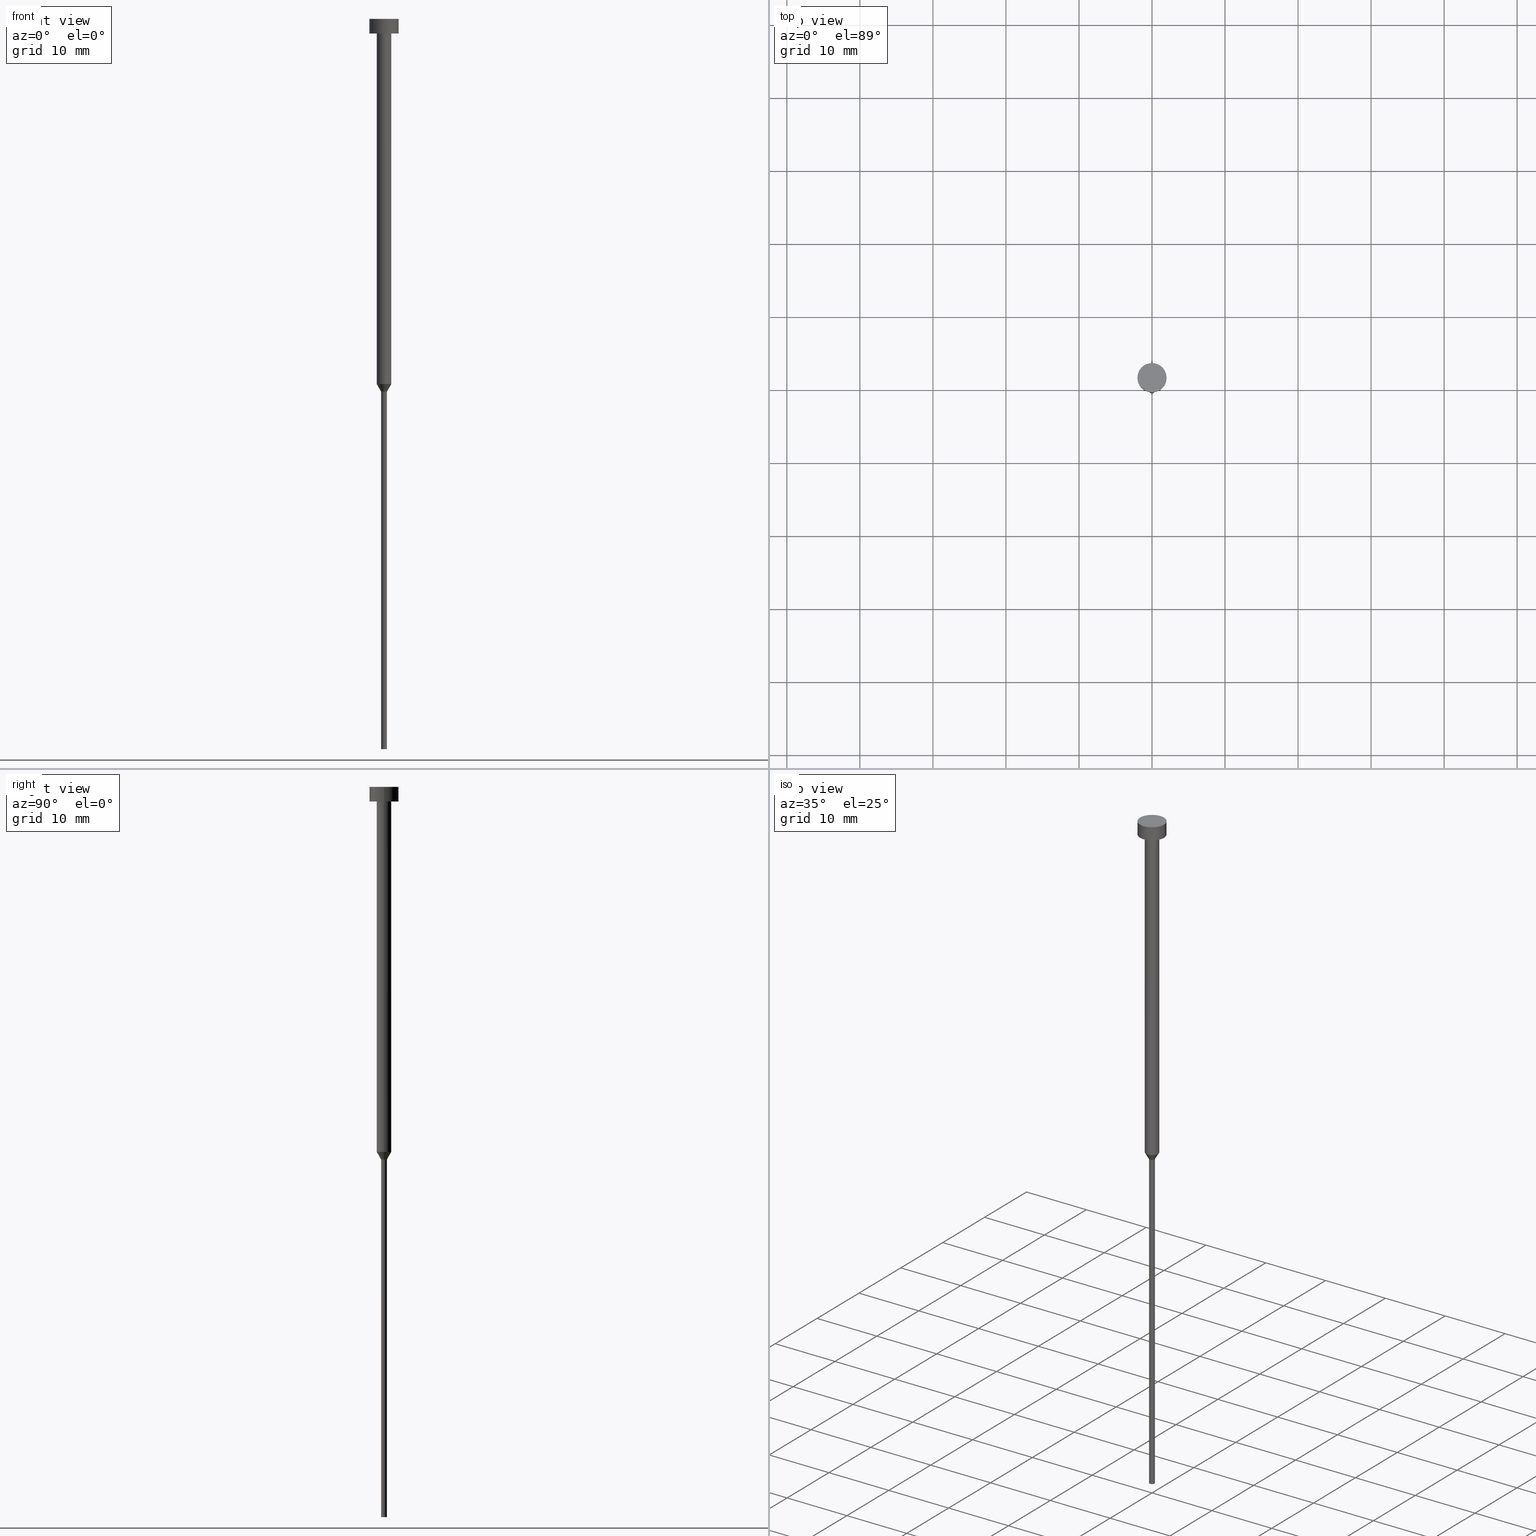
[diagram: canonical four-view strip — front | top / right | iso, engineering-drawing reading convention]
A machine part, canonical four-view strip (front | top / right | iso — engineering-drawing reading convention). The complete STEP part file that produces these views, byte-faithful:
ISO-10303-21;
HEADER;
FILE_DESCRIPTION (( 'STEP AP203' ),
    '1' );
FILE_NAME ('f9f1.STEP',
    '2023-02-13T12:41:39',
    ( '' ),
    ( '' ),
    'SwSTEP 2.0',
    'SolidWorks 2019',
    '' );
FILE_SCHEMA (( 'CONFIG_CONTROL_DESIGN' ));
ENDSEC;

DATA;
#1 = CIRCLE ( 'NONE', #12, 2.000000000000000000 ) ;
#2 = VECTOR ( 'NONE', #323, 1000.000000000000000 ) ;
#3 = AXIS2_PLACEMENT_3D ( 'NONE', #332, #129, #99 ) ;
#4 = DIRECTION ( 'NONE',  ( -0.000000000000000000, -0.000000000000000000, 1.000000000000000000 ) ) ;
#5 = PERSON_AND_ORGANIZATION ( #109, #113 ) ;
#6 = CIRCLE ( 'NONE', #275, 2.000000000000000000 ) ;
#7 = CC_DESIGN_SECURITY_CLASSIFICATION ( #45, ( #75 ) ) ;
#8 = CC_DESIGN_PERSON_AND_ORGANIZATION_ASSIGNMENT ( #57, #220, ( #75 ) ) ;
#9 = ORIENTED_EDGE ( 'NONE', *, *, #96, .T. ) ;
#10 = PERSON_AND_ORGANIZATION ( #109, #113 ) ;
#11 = VERTEX_POINT ( 'NONE', #207 ) ;
#12 = AXIS2_PLACEMENT_3D ( 'NONE', #232, #65, #60 ) ;
#13 = ADVANCED_FACE ( 'NONE', ( #16 ), #322, .T. ) ;
#14 = CYLINDRICAL_SURFACE ( 'NONE', #3, 2.000000000000000000 ) ;
#15 = CYLINDRICAL_SURFACE ( 'NONE', #327, 0.3999999999999999667 ) ;
#16 = FACE_OUTER_BOUND ( 'NONE', #67, .T. ) ;
#17 = PERSON_AND_ORGANIZATION ( #109, #113 ) ;
#18 = CLOSED_SHELL ( 'NONE', ( #143, #13, #231, #87, #127, #22, #193, #130, #73, #150, #211 ) ) ;
#19 = DIRECTION ( 'NONE',  ( -0.000000000000000000, -0.000000000000000000, 1.000000000000000000 ) ) ;
#20 = CC_DESIGN_APPROVAL ( #48, ( #45 ) ) ;
#21 = DIRECTION ( 'NONE',  ( 1.000000000000000000, 0.000000000000000000, 0.000000000000000000 ) ) ;
#22 = ADVANCED_FACE ( 'NONE', ( #38 ), #15, .T. ) ;
#23 = CARTESIAN_POINT ( 'NONE',  ( 0.000000000000000000, 0.000000000000000000, 0.000000000000000000 ) ) ;
#24 = ORIENTED_EDGE ( 'NONE', *, *, #184, .T. ) ;
#25 = AXIS2_PLACEMENT_3D ( 'NONE', #23, #126, #249 ) ;
#26 = VERTEX_POINT ( 'NONE', #198 ) ;
#27 = CC_DESIGN_PERSON_AND_ORGANIZATION_ASSIGNMENT ( #5, #83, ( #45 ) ) ;
#28 = FACE_OUTER_BOUND ( 'NONE', #169, .T. ) ;
#29 = EDGE_CURVE ( 'NONE', #26, #283, #115, .T. ) ;
#30 = ORIENTED_EDGE ( 'NONE', *, *, #29, .F. ) ;
#31 = ORIENTED_EDGE ( 'NONE', *, *, #96, .F. ) ;
#32 = AXIS2_PLACEMENT_3D ( 'NONE', #131, #55, #106 ) ;
#33 = DATE_AND_TIME ( #108, #122 ) ;
#34 = DIRECTION ( 'NONE',  ( 1.000000000000000000, 0.000000000000000000, 0.000000000000000000 ) ) ;
#35 = APPROVAL_DATE_TIME ( #290, #105 ) ;
#36 = DIRECTION ( 'NONE',  ( -0.000000000000000000, -0.000000000000000000, 1.000000000000000000 ) ) ;
#37 = DIRECTION ( 'NONE',  ( 1.000000000000000000, 0.000000000000000000, 0.000000000000000000 ) ) ;
#38 = FACE_OUTER_BOUND ( 'NONE', #84, .T. ) ;
#39 = CIRCLE ( 'NONE', #50, 0.4000000000000000222 ) ;
#40 = PERSON_AND_ORGANIZATION_ROLE ( 'design_owner' ) ;
#41 = LINE ( 'NONE', #118, #265 ) ;
#42 = VERTEX_POINT ( 'NONE', #110 ) ;
#43 = DIRECTION ( 'NONE',  ( 1.000000000000000000, 0.000000000000000000, 0.000000000000000000 ) ) ;
#44 = DIRECTION ( 'NONE',  ( -0.000000000000000000, -0.000000000000000000, 1.000000000000000000 ) ) ;
#45 = SECURITY_CLASSIFICATION ( '', '', #103 ) ;
#46 = CONICAL_SURFACE ( 'NONE', #197, 1.000000000000003109, 0.5235987755983013692 ) ;
#47 = DIRECTION ( 'NONE',  ( -0.000000000000000000, -0.000000000000000000, 1.000000000000000000 ) ) ;
#48 = APPROVAL ( #315, 'NEUR�EN�' ) ;
#49 = CARTESIAN_POINT ( 'NONE',  ( -1.000000000000003109, 1.224646799147356905E-16, -50.00000000000000000 ) ) ;
#50 = AXIS2_PLACEMENT_3D ( 'NONE', #61, #4, #80 ) ;
#51 = DIRECTION ( 'NONE',  ( -0.000000000000000000, -0.000000000000000000, 1.000000000000000000 ) ) ;
#52 = AXIS2_PLACEMENT_3D ( 'NONE', #151, #19, #98 ) ;
#53 = ORIENTED_EDGE ( 'NONE', *, *, #69, .F. ) ;
#54 = DATE_TIME_ROLE ( 'classification_date' ) ;
#55 = DIRECTION ( 'NONE',  ( -0.000000000000000000, -0.000000000000000000, 1.000000000000000000 ) ) ;
#56 = VERTEX_POINT ( 'NONE', #267 ) ;
#57 = PERSON_AND_ORGANIZATION ( #109, #113 ) ;
#58 = APPROVAL_ROLE ( '' ) ;
#59 = AXIS2_PLACEMENT_3D ( 'NONE', #248, #308, #353 ) ;
#60 = DIRECTION ( 'NONE',  ( 1.000000000000000000, 0.000000000000000000, 0.000000000000000000 ) ) ;
#61 = CARTESIAN_POINT ( 'NONE',  ( 0.000000000000000000, 0.000000000000000000, -100.0000000000000000 ) ) ;
#62 = VERTEX_POINT ( 'NONE', #328 ) ;
#63 = CARTESIAN_POINT ( 'NONE',  ( -0.3999999999999999667, 4.898587196589412459E-17, 0.000000000000000000 ) ) ;
#64 = CARTESIAN_POINT ( 'NONE',  ( 2.000000000000000000, 0.000000000000000000, -2.449293598294705921E-16 ) ) ;
#65 = DIRECTION ( 'NONE',  ( -0.000000000000000000, -0.000000000000000000, 1.000000000000000000 ) ) ;
#66 = CARTESIAN_POINT ( 'NONE',  ( 0.000000000000000000, 0.000000000000000000, -2.000000000000000444 ) ) ;
#67 = EDGE_LOOP ( 'NONE', ( #24, #242, #30, #138 ) ) ;
#68 = CARTESIAN_POINT ( 'NONE',  ( 0.000000000000000000, 0.000000000000000000, -2.000000000000000444 ) ) ;
#69 = EDGE_CURVE ( 'NONE', #62, #142, #41, .T. ) ;
#70 = ORIENTED_EDGE ( 'NONE', *, *, #339, .F. ) ;
#71 = AXIS2_PLACEMENT_3D ( 'NONE', #284, #257, #317 ) ;
#72 = CARTESIAN_POINT ( 'NONE',  ( 0.000000000000000000, 0.000000000000000000, -50.00000000000000000 ) ) ;
#73 = ADVANCED_FACE ( 'NONE', ( #175, #300 ), #306, .T. ) ;
#74 = CARTESIAN_POINT ( 'NONE',  ( -2.000000000000000000, 2.449293598294706414E-16, -2.000000000000000444 ) ) ;
#75 = PRODUCT_DEFINITION_FORMATION_WITH_SPECIFIED_SOURCE ( 'LIBOVOLN�', '', #270, .NOT_KNOWN. ) ;
#76 = EDGE_LOOP ( 'NONE', ( #88, #182, #302, #53 ) ) ;
#77 = CARTESIAN_POINT ( 'NONE',  ( 0.000000000000000000, 0.000000000000000000, 0.000000000000000000 ) ) ;
#78 = EDGE_CURVE ( 'NONE', #62, #144, #6, .T. ) ;
#79 = CARTESIAN_POINT ( 'NONE',  ( 0.000000000000000000, 0.000000000000000000, -1.224646799147352961E-16 ) ) ;
#80 = DIRECTION ( 'NONE',  ( 1.000000000000000000, 0.000000000000000000, 0.000000000000000000 ) ) ;
#81 = VECTOR ( 'NONE', #189, 1000.000000000000000 ) ;
#82 = ORIENTED_EDGE ( 'NONE', *, *, #184, .F. ) ;
#83 = PERSON_AND_ORGANIZATION_ROLE ( 'classification_officer' ) ;
#84 = EDGE_LOOP ( 'NONE', ( #250, #128, #135, #190 ) ) ;
#85 = DATE_TIME_ROLE ( 'creation_date' ) ;
#86 = FACE_OUTER_BOUND ( 'NONE', #263, .T. ) ;
#87 = ADVANCED_FACE ( 'NONE', ( #148 ), #215, .T. ) ;
#88 = ORIENTED_EDGE ( 'NONE', *, *, #78, .T. ) ;
#89 = DIRECTION ( 'NONE',  ( -0.000000000000000000, -0.000000000000000000, 1.000000000000000000 ) ) ;
#90 = APPROVAL_DATE_TIME ( #352, #166 ) ;
#91 = ORIENTED_EDGE ( 'NONE', *, *, #188, .T. ) ;
#92 = VECTOR ( 'NONE', #159, 1000.000000000000000 ) ;
#93 = PLANE ( 'NONE',  #318 ) ;
#94 = ORIENTED_EDGE ( 'NONE', *, *, #245, .T. ) ;
#95 =( GEOMETRIC_REPRESENTATION_CONTEXT ( 3 ) GLOBAL_UNCERTAINTY_ASSIGNED_CONTEXT ( ( #228 ) ) GLOBAL_UNIT_ASSIGNED_CONTEXT ( ( #348, #351, #298 ) ) REPRESENTATION_CONTEXT ( 'NONE', 'WORKASPACE' ) );
#96 = EDGE_CURVE ( 'NONE', #42, #310, #274, .T. ) ;
#97 = CARTESIAN_POINT ( 'NONE',  ( 0.000000000000000000, 0.000000000000000000, -2.449293598294705921E-16 ) ) ;
#98 = DIRECTION ( 'NONE',  ( 1.000000000000000000, 0.000000000000000000, 0.000000000000000000 ) ) ;
#99 = DIRECTION ( 'NONE',  ( 1.000000000000000000, 0.000000000000000000, 0.000000000000000000 ) ) ;
#100 = AXIS2_PLACEMENT_3D ( 'NONE', #289, #296, #349 ) ;
#101 = CC_DESIGN_PERSON_AND_ORGANIZATION_ASSIGNMENT ( #112, #227, ( #277 ) ) ;
#102 = CARTESIAN_POINT ( 'NONE',  ( 0.000000000000000000, 0.000000000000000000, -2.449293598294705921E-16 ) ) ;
#103 = SECURITY_CLASSIFICATION_LEVEL ( 'unclassified' ) ;
#104 = COORDINATED_UNIVERSAL_TIME_OFFSET ( 1, 0, .AHEAD. ) ;
#105 = APPROVAL ( #321, 'NEUR�EN�' ) ;
#106 = DIRECTION ( 'NONE',  ( 1.000000000000000000, 0.000000000000000000, 0.000000000000000000 ) ) ;
#107 = ORIENTED_EDGE ( 'NONE', *, *, #251, .T. ) ;
#108 = CALENDAR_DATE ( 2023, 13, 2 ) ;
#109 = PERSON ( 'NEUR�EN�', 'NEUR�EN�', 'NEUR�EN�', ('NEUR�EN�'), ('NEUR�EN�'), ('NEUR�EN�') ) ;
#110 = CARTESIAN_POINT ( 'NONE',  ( -0.3999999999999999667, 4.898587196589412459E-17, -51.03923048454132783 ) ) ;
#111 = DIRECTION ( 'NONE',  ( -0.000000000000000000, -0.000000000000000000, 1.000000000000000000 ) ) ;
#112 = PERSON_AND_ORGANIZATION ( #109, #113 ) ;
#113 = ORGANIZATION ( 'NEUR�EN�', 'NEUR�EN�', '' ) ;
#114 = CC_DESIGN_DATE_AND_TIME_ASSIGNMENT ( #33, #54, ( #45 ) ) ;
#115 = CIRCLE ( 'NONE', #333, 1.000000000000003553 ) ;
#116 = LINE ( 'NONE', #133, #305 ) ;
#117 = APPROVAL_STATUS ( 'not_yet_approved' ) ;
#118 = CARTESIAN_POINT ( 'NONE',  ( 2.000000000000000000, 0.000000000000000000, 0.000000000000000000 ) ) ;
#119 = EDGE_LOOP ( 'NONE', ( #325, #107 ) ) ;
#120 = EDGE_CURVE ( 'NONE', #42, #56, #153, .T. ) ;
#121 = CARTESIAN_POINT ( 'NONE',  ( 0.000000000000000000, 0.000000000000000000, 0.000000000000000000 ) ) ;
#122 = LOCAL_TIME ( 13, 41, 39.00000000000000000, #312 ) ;
#123 = AXIS2_PLACEMENT_3D ( 'NONE', #77, #276, #280 ) ;
#124 = DIRECTION ( 'NONE',  ( 1.000000000000000000, 0.000000000000000000, 0.000000000000000000 ) ) ;
#125 = VERTEX_POINT ( 'NONE', #337 ) ;
#126 = DIRECTION ( 'NONE',  ( -0.000000000000000000, -0.000000000000000000, 1.000000000000000000 ) ) ;
#127 = ADVANCED_FACE ( 'NONE', ( #246 ), #93, .T. ) ;
#128 = ORIENTED_EDGE ( 'NONE', *, *, #320, .T. ) ;
#129 = DIRECTION ( 'NONE',  ( -0.000000000000000000, -0.000000000000000000, 1.000000000000000000 ) ) ;
#130 = ADVANCED_FACE ( 'NONE', ( #86 ), #234, .T. ) ;
#131 = CARTESIAN_POINT ( 'NONE',  ( 0.000000000000000000, 0.000000000000000000, -100.0000000000000000 ) ) ;
#132 = DIRECTION ( 'NONE',  ( 1.000000000000000000, 0.000000000000000000, 0.000000000000000000 ) ) ;
#133 = CARTESIAN_POINT ( 'NONE',  ( 1.000000000000003331, 0.000000000000000000, 0.000000000000000000 ) ) ;
#134 = ORIENTED_EDGE ( 'NONE', *, *, #203, .F. ) ;
#135 = ORIENTED_EDGE ( 'NONE', *, *, #203, .T. ) ;
#136 = DIRECTION ( 'NONE',  ( -0.000000000000000000, -0.000000000000000000, 1.000000000000000000 ) ) ;
#137 = AXIS2_PLACEMENT_3D ( 'NONE', #324, #177, #37 ) ;
#138 = ORIENTED_EDGE ( 'NONE', *, *, #223, .F. ) ;
#139 = CARTESIAN_POINT ( 'NONE',  ( 1.000000000000003109, 0.000000000000000000, -50.00000000000000000 ) ) ;
#140 = APPROVAL_ROLE ( '' ) ;
#141 = LOCAL_TIME ( 13, 41, 39.00000000000000000, #157 ) ;
#142 = VERTEX_POINT ( 'NONE', #64 ) ;
#143 = ADVANCED_FACE ( 'NONE', ( #295 ), #14, .T. ) ;
#144 = VERTEX_POINT ( 'NONE', #74 ) ;
#145 = LINE ( 'NONE', #63, #2 ) ;
#146 = APPLICATION_PROTOCOL_DEFINITION ( 'international standard', 'config_control_design', 1994, #221 ) ;
#147 = LOCAL_TIME ( 13, 41, 39.00000000000000000, #104 ) ;
#148 = FACE_OUTER_BOUND ( 'NONE', #152, .T. ) ;
#149 = FACE_OUTER_BOUND ( 'NONE', #285, .T. ) ;
#150 = ADVANCED_FACE ( 'NONE', ( #335 ), #217, .T. ) ;
#151 = CARTESIAN_POINT ( 'NONE',  ( 0.000000000000000000, 0.000000000000000000, -51.03923048454132783 ) ) ;
#152 = EDGE_LOOP ( 'NONE', ( #330, #94, #174, #134 ) ) ;
#153 = CIRCLE ( 'NONE', #52, 0.3999999999999999667 ) ;
#154 = DIRECTION ( 'NONE',  ( 1.000000000000000000, 0.000000000000000000, 0.000000000000000000 ) ) ;
#155 = ORIENTED_EDGE ( 'NONE', *, *, #320, .F. ) ;
#156 = SHAPE_DEFINITION_REPRESENTATION ( #214, #235 ) ;
#157 = COORDINATED_UNIVERSAL_TIME_OFFSET ( 1, 0, .AHEAD. ) ;
#158 = CONICAL_SURFACE ( 'NONE', #350, 1.000000000000003109, 0.5235987755983013692 ) ;
#159 = DIRECTION ( 'NONE',  ( -0.000000000000000000, -0.000000000000000000, 1.000000000000000000 ) ) ;
#160 = EDGE_CURVE ( 'NONE', #56, #42, #299, .T. ) ;
#161 = CARTESIAN_POINT ( 'NONE',  ( -2.000000000000000000, 2.449293598294706414E-16, 0.000000000000000000 ) ) ;
#162 = EDGE_LOOP ( 'NONE', ( #165, #240 ) ) ;
#163 = DATE_AND_TIME ( #341, #141 ) ;
#164 = AXIS2_PLACEMENT_3D ( 'NONE', #293, #136, #243 ) ;
#165 = ORIENTED_EDGE ( 'NONE', *, *, #78, .F. ) ;
#166 = APPROVAL ( #117, 'NEUR�EN�' ) ;
#167 = DIRECTION ( 'NONE',  ( 0.5000000000000021094, 0.000000000000000000, 0.8660254037844373753 ) ) ;
#168 = LINE ( 'NONE', #161, #81 ) ;
#169 = EDGE_LOOP ( 'NONE', ( #31, #261, #253, #209 ) ) ;
#170 = ORIENTED_EDGE ( 'NONE', *, *, #160, .T. ) ;
#171 = CALENDAR_DATE ( 2023, 13, 2 ) ;
#172 = CARTESIAN_POINT ( 'NONE',  ( -2.000000000000000000, 2.449293598294706414E-16, -2.449293598294705921E-16 ) ) ;
#173 = DIRECTION ( 'NONE',  ( -0.000000000000000000, -0.000000000000000000, 1.000000000000000000 ) ) ;
#174 = ORIENTED_EDGE ( 'NONE', *, *, #160, .F. ) ;
#175 = FACE_BOUND ( 'NONE', #119, .T. ) ;
#176 = CARTESIAN_POINT ( 'NONE',  ( 0.000000000000000000, 0.000000000000000000, -50.00000000000000000 ) ) ;
#177 = DIRECTION ( 'NONE',  ( 0.000000000000000000, 0.000000000000000000, 1.000000000000000000 ) ) ;
#178 = DIRECTION ( 'NONE',  ( -0.000000000000000000, -0.000000000000000000, 1.000000000000000000 ) ) ;
#179 = CARTESIAN_POINT ( 'NONE',  ( -1.000000000000003553, 1.224646799147357398E-16, -2.000000000000000444 ) ) ;
#180 = CC_DESIGN_PERSON_AND_ORGANIZATION_ASSIGNMENT ( #326, #40, ( #270 ) ) ;
#181 = CARTESIAN_POINT ( 'NONE',  ( 0.3999999999999999667, 0.000000000000000000, 0.000000000000000000 ) ) ;
#182 = ORIENTED_EDGE ( 'NONE', *, *, #334, .T. ) ;
#183 = DIRECTION ( 'NONE',  ( -0.000000000000000000, -0.000000000000000000, 1.000000000000000000 ) ) ;
#184 = EDGE_CURVE ( 'NONE', #125, #310, #241, .T. ) ;
#185 = CIRCLE ( 'NONE', #32, 0.4000000000000000222 ) ;
#186 = PLANE ( 'NONE',  #255 ) ;
#187 = DIRECTION ( 'NONE',  ( 1.000000000000000000, 0.000000000000000000, 0.000000000000000000 ) ) ;
#188 = EDGE_CURVE ( 'NONE', #271, #142, #230, .T. ) ;
#189 = DIRECTION ( 'NONE',  ( -0.000000000000000000, -0.000000000000000000, 1.000000000000000000 ) ) ;
#190 = ORIENTED_EDGE ( 'NONE', *, *, #120, .F. ) ;
#191 = DESIGN_CONTEXT ( 'detailed design', #336, 'design' ) ;
#192 = ORIENTED_EDGE ( 'NONE', *, *, #301, .F. ) ;
#193 = ADVANCED_FACE ( 'NONE', ( #28 ), #46, .T. ) ;
#194 = FACE_OUTER_BOUND ( 'NONE', #262, .T. ) ;
#195 = CC_DESIGN_APPROVAL ( #105, ( #75 ) ) ;
#196 = LINE ( 'NONE', #199, #92 ) ;
#197 = AXIS2_PLACEMENT_3D ( 'NONE', #72, #254, #21 ) ;
#198 = CARTESIAN_POINT ( 'NONE',  ( 1.000000000000003553, 0.000000000000000000, -2.000000000000000444 ) ) ;
#199 = CARTESIAN_POINT ( 'NONE',  ( -1.000000000000003331, 1.224646799147357151E-16, 0.000000000000000000 ) ) ;
#200 = PERSON_AND_ORGANIZATION ( #109, #113 ) ;
#201 = DIRECTION ( 'NONE',  ( 1.000000000000000000, 0.000000000000000000, 0.000000000000000000 ) ) ;
#202 = ORIENTED_EDGE ( 'NONE', *, *, #260, .T. ) ;
#203 = EDGE_CURVE ( 'NONE', #222, #56, #247, .T. ) ;
#204 = DIRECTION ( 'NONE',  ( 1.000000000000000000, 0.000000000000000000, 0.000000000000000000 ) ) ;
#205 = ORIENTED_EDGE ( 'NONE', *, *, #223, .T. ) ;
#206 = CALENDAR_DATE ( 2023, 13, 2 ) ;
#207 = CARTESIAN_POINT ( 'NONE',  ( -0.4000000000000000777, 4.898587196589413692E-17, -100.0000000000000000 ) ) ;
#208 = AXIS2_PLACEMENT_3D ( 'NONE', #213, #307, #278 ) ;
#209 = ORIENTED_EDGE ( 'NONE', *, *, #311, .F. ) ;
#210 = CARTESIAN_POINT ( 'NONE',  ( 0.000000000000000000, 0.000000000000000000, -100.0000000000000000 ) ) ;
#211 = ADVANCED_FACE ( 'NONE', ( #149 ), #186, .T. ) ;
#212 = AXIS2_PLACEMENT_3D ( 'NONE', #252, #183, #124 ) ;
#213 = CARTESIAN_POINT ( 'NONE',  ( 0.000000000000000000, -2.000000000000000000, -2.000000000000000444 ) ) ;
#214 = PRODUCT_DEFINITION_SHAPE ( 'NONE', 'NONE',  #277 ) ;
#215 = CYLINDRICAL_SURFACE ( 'NONE', #25, 0.3999999999999999667 ) ;
#216 = VECTOR ( 'NONE', #47, 1000.000000000000000 ) ;
#217 = CYLINDRICAL_SURFACE ( 'NONE', #123, 2.000000000000000000 ) ;
#218 = APPROVAL_DATE_TIME ( #163, #48 ) ;
#219 = EDGE_LOOP ( 'NONE', ( #346, #202, #343, #237 ) ) ;
#220 = PERSON_AND_ORGANIZATION_ROLE ( 'creator' ) ;
#221 = APPLICATION_CONTEXT ( 'configuration controlled 3d designs of mechanical parts and assemblies' ) ;
#222 = VERTEX_POINT ( 'NONE', #329 ) ;
#223 = EDGE_CURVE ( 'NONE', #125, #26, #116, .T. ) ;
#224 = PERSON_AND_ORGANIZATION ( #109, #113 ) ;
#225 = CIRCLE ( 'NONE', #71, 1.000000000000003109 ) ;
#226 = CARTESIAN_POINT ( 'NONE',  ( -1.000000000000003109, 1.224646799147356905E-16, -50.00000000000000000 ) ) ;
#227 = PERSON_AND_ORGANIZATION_ROLE ( 'creator' ) ;
#228 = UNCERTAINTY_MEASURE_WITH_UNIT (LENGTH_MEASURE( 1.000000000000000082E-05 ), #348, 'distance_accuracy_value', 'NONE');
#229 = DIRECTION ( 'NONE',  ( 0.000000000000000000, 0.000000000000000000, -1.000000000000000000 ) ) ;
#230 = CIRCLE ( 'NONE', #338, 2.000000000000000000 ) ;
#231 = ADVANCED_FACE ( 'NONE', ( #194 ), #158, .T. ) ;
#232 = CARTESIAN_POINT ( 'NONE',  ( 0.000000000000000000, 0.000000000000000000, -2.000000000000000444 ) ) ;
#233 = APPLICATION_PROTOCOL_DEFINITION ( 'international standard', 'config_control_design', 1994, #336 ) ;
#234 = CYLINDRICAL_SURFACE ( 'NONE', #288, 1.000000000000003331 ) ;
#235 = ADVANCED_BREP_SHAPE_REPRESENTATION ( 'f9f1', ( #238, #137 ), #95 ) ;
#236 = DIRECTION ( 'NONE',  ( -0.000000000000000000, -0.000000000000000000, 1.000000000000000000 ) ) ;
#237 = ORIENTED_EDGE ( 'NONE', *, *, #188, .F. ) ;
#238 = MANIFOLD_SOLID_BREP ( 'Rotovat1', #18 ) ;
#239 = APPROVAL_PERSON_ORGANIZATION ( #17, #166, #140 ) ;
#240 = ORIENTED_EDGE ( 'NONE', *, *, #260, .F. ) ;
#241 = CIRCLE ( 'NONE', #59, 1.000000000000003109 ) ;
#242 = ORIENTED_EDGE ( 'NONE', *, *, #301, .T. ) ;
#243 = DIRECTION ( 'NONE',  ( 1.000000000000000000, 0.000000000000000000, 0.000000000000000000 ) ) ;
#244 = COORDINATED_UNIVERSAL_TIME_OFFSET ( 1, 0, .AHEAD. ) ;
#245 = EDGE_CURVE ( 'NONE', #11, #42, #145, .T. ) ;
#246 = FACE_OUTER_BOUND ( 'NONE', #319, .T. ) ;
#247 = LINE ( 'NONE', #181, #216 ) ;
#248 = CARTESIAN_POINT ( 'NONE',  ( 0.000000000000000000, 0.000000000000000000, -50.00000000000000000 ) ) ;
#249 = DIRECTION ( 'NONE',  ( 1.000000000000000000, 0.000000000000000000, 0.000000000000000000 ) ) ;
#250 = ORIENTED_EDGE ( 'NONE', *, *, #245, .F. ) ;
#251 = EDGE_CURVE ( 'NONE', #283, #26, #304, .T. ) ;
#252 = CARTESIAN_POINT ( 'NONE',  ( 0.000000000000000000, 0.000000000000000000, -51.03923048454132783 ) ) ;
#253 = ORIENTED_EDGE ( 'NONE', *, *, #273, .T. ) ;
#254 = DIRECTION ( 'NONE',  ( -0.000000000000000000, -0.000000000000000000, 1.000000000000000000 ) ) ;
#255 = AXIS2_PLACEMENT_3D ( 'NONE', #79, #256, #187 ) ;
#256 = DIRECTION ( 'NONE',  ( 0.000000000000000000, -0.000000000000000000, 1.000000000000000000 ) ) ;
#257 = DIRECTION ( 'NONE',  ( -0.000000000000000000, -0.000000000000000000, 1.000000000000000000 ) ) ;
#258 = PERSON_AND_ORGANIZATION_ROLE ( 'design_supplier' ) ;
#259 = VECTOR ( 'NONE', #167, 1000.000000000000227 ) ;
#260 = EDGE_CURVE ( 'NONE', #144, #62, #1, .T. ) ;
#261 = ORIENTED_EDGE ( 'NONE', *, *, #120, .T. ) ;
#262 = EDGE_LOOP ( 'NONE', ( #170, #9, #82, #286 ) ) ;
#263 = EDGE_LOOP ( 'NONE', ( #192, #340, #205, #272 ) ) ;
#264 = AXIS2_PLACEMENT_3D ( 'NONE', #102, #44, #204 ) ;
#265 = VECTOR ( 'NONE', #236, 1000.000000000000000 ) ;
#266 = CC_DESIGN_PERSON_AND_ORGANIZATION_ASSIGNMENT ( #10, #258, ( #75 ) ) ;
#267 = CARTESIAN_POINT ( 'NONE',  ( 0.3999999999999999667, 0.000000000000000000, -51.03923048454132783 ) ) ;
#268 = COORDINATED_UNIVERSAL_TIME_OFFSET ( 1, 0, .AHEAD. ) ;
#269 = CARTESIAN_POINT ( 'NONE',  ( 0.000000000000000000, 0.000000000000000000, 0.000000000000000000 ) ) ;
#270 = PRODUCT ( 'f9f1', 'f9f1', '', ( #303 ) ) ;
#271 = VERTEX_POINT ( 'NONE', #172 ) ;
#272 = ORIENTED_EDGE ( 'NONE', *, *, #251, .F. ) ;
#273 = EDGE_CURVE ( 'NONE', #56, #125, #297, .T. ) ;
#274 = LINE ( 'NONE', #49, #309 ) ;
#275 = AXIS2_PLACEMENT_3D ( 'NONE', #68, #178, #355 ) ;
#276 = DIRECTION ( 'NONE',  ( -0.000000000000000000, -0.000000000000000000, 1.000000000000000000 ) ) ;
#277 = PRODUCT_DEFINITION ( 'NEZN�M�', '', #75, #191 ) ;
#278 = DIRECTION ( 'NONE',  ( -1.000000000000000000, 0.000000000000000000, -0.000000000000000000 ) ) ;
#279 = LOCAL_TIME ( 13, 41, 39.00000000000000000, #268 ) ;
#280 = DIRECTION ( 'NONE',  ( 1.000000000000000000, 0.000000000000000000, 0.000000000000000000 ) ) ;
#281 = PRODUCT_RELATED_PRODUCT_CATEGORY ( 'detail', '', ( #270 ) ) ;
#282 = CIRCLE ( 'NONE', #264, 2.000000000000000000 ) ;
#283 = VERTEX_POINT ( 'NONE', #179 ) ;
#284 = CARTESIAN_POINT ( 'NONE',  ( 0.000000000000000000, 0.000000000000000000, -50.00000000000000000 ) ) ;
#285 = EDGE_LOOP ( 'NONE', ( #313, #91 ) ) ;
#286 = ORIENTED_EDGE ( 'NONE', *, *, #273, .F. ) ;
#287 = APPROVAL_PERSON_ORGANIZATION ( #200, #105, #294 ) ;
#288 = AXIS2_PLACEMENT_3D ( 'NONE', #269, #173, #201 ) ;
#289 = CARTESIAN_POINT ( 'NONE',  ( 0.000000000000000000, 0.000000000000000000, 0.000000000000000000 ) ) ;
#290 = DATE_AND_TIME ( #314, #147 ) ;
#291 = APPROVAL_PERSON_ORGANIZATION ( #224, #48, #58 ) ;
#292 = DIRECTION ( 'NONE',  ( -0.000000000000000000, -0.000000000000000000, 1.000000000000000000 ) ) ;
#293 = CARTESIAN_POINT ( 'NONE',  ( 0.000000000000000000, 0.000000000000000000, -2.000000000000000444 ) ) ;
#294 = APPROVAL_ROLE ( '' ) ;
#295 = FACE_OUTER_BOUND ( 'NONE', #76, .T. ) ;
#296 = DIRECTION ( 'NONE',  ( -0.000000000000000000, -0.000000000000000000, 1.000000000000000000 ) ) ;
#297 = LINE ( 'NONE', #139, #259 ) ;
#298 =( NAMED_UNIT ( * ) SI_UNIT ( $, .STERADIAN. ) SOLID_ANGLE_UNIT ( ) );
#299 = CIRCLE ( 'NONE', #212, 0.3999999999999999667 ) ;
#300 = FACE_OUTER_BOUND ( 'NONE', #162, .T. ) ;
#301 = EDGE_CURVE ( 'NONE', #310, #283, #196, .T. ) ;
#302 = ORIENTED_EDGE ( 'NONE', *, *, #347, .F. ) ;
#303 = MECHANICAL_CONTEXT ( 'NONE', #221, 'mechanical' ) ;
#304 = CIRCLE ( 'NONE', #164, 1.000000000000003553 ) ;
#305 = VECTOR ( 'NONE', #89, 1000.000000000000000 ) ;
#306 = PLANE ( 'NONE',  #208 ) ;
#307 = DIRECTION ( 'NONE',  ( 0.000000000000000000, 0.000000000000000000, -1.000000000000000000 ) ) ;
#308 = DIRECTION ( 'NONE',  ( -0.000000000000000000, -0.000000000000000000, 1.000000000000000000 ) ) ;
#309 = VECTOR ( 'NONE', #354, 1000.000000000000227 ) ;
#310 = VERTEX_POINT ( 'NONE', #226 ) ;
#311 = EDGE_CURVE ( 'NONE', #310, #125, #225, .T. ) ;
#312 = COORDINATED_UNIVERSAL_TIME_OFFSET ( 1, 0, .AHEAD. ) ;
#313 = ORIENTED_EDGE ( 'NONE', *, *, #347, .T. ) ;
#314 = CALENDAR_DATE ( 2023, 13, 2 ) ;
#315 = APPROVAL_STATUS ( 'not_yet_approved' ) ;
#316 = CC_DESIGN_APPROVAL ( #166, ( #277 ) ) ;
#317 = DIRECTION ( 'NONE',  ( 1.000000000000000000, 0.000000000000000000, 0.000000000000000000 ) ) ;
#318 = AXIS2_PLACEMENT_3D ( 'NONE', #210, #229, #345 ) ;
#319 = EDGE_LOOP ( 'NONE', ( #70, #155 ) ) ;
#320 = EDGE_CURVE ( 'NONE', #11, #222, #39, .T. ) ;
#321 = APPROVAL_STATUS ( 'not_yet_approved' ) ;
#322 = CYLINDRICAL_SURFACE ( 'NONE', #100, 1.000000000000003331 ) ;
#323 = DIRECTION ( 'NONE',  ( -0.000000000000000000, -0.000000000000000000, 1.000000000000000000 ) ) ;
#324 = CARTESIAN_POINT ( 'NONE',  ( 0.000000000000000000, 0.000000000000000000, 0.000000000000000000 ) ) ;
#325 = ORIENTED_EDGE ( 'NONE', *, *, #29, .T. ) ;
#326 = PERSON_AND_ORGANIZATION ( #109, #113 ) ;
#327 = AXIS2_PLACEMENT_3D ( 'NONE', #121, #292, #34 ) ;
#328 = CARTESIAN_POINT ( 'NONE',  ( 2.000000000000000000, 0.000000000000000000, -2.000000000000000444 ) ) ;
#329 = CARTESIAN_POINT ( 'NONE',  ( 0.4000000000000000222, 0.000000000000000000, -100.0000000000000000 ) ) ;
#330 = ORIENTED_EDGE ( 'NONE', *, *, #339, .T. ) ;
#331 = LOCAL_TIME ( 13, 41, 39.00000000000000000, #244 ) ;
#332 = CARTESIAN_POINT ( 'NONE',  ( 0.000000000000000000, 0.000000000000000000, 0.000000000000000000 ) ) ;
#333 = AXIS2_PLACEMENT_3D ( 'NONE', #66, #36, #132 ) ;
#334 = EDGE_CURVE ( 'NONE', #144, #271, #168, .T. ) ;
#335 = FACE_OUTER_BOUND ( 'NONE', #219, .T. ) ;
#336 = APPLICATION_CONTEXT ( 'configuration controlled 3d designs of mechanical parts and assemblies' ) ;
#337 = CARTESIAN_POINT ( 'NONE',  ( 1.000000000000003109, 0.000000000000000000, -50.00000000000000000 ) ) ;
#338 = AXIS2_PLACEMENT_3D ( 'NONE', #97, #51, #154 ) ;
#339 = EDGE_CURVE ( 'NONE', #222, #11, #185, .T. ) ;
#340 = ORIENTED_EDGE ( 'NONE', *, *, #311, .T. ) ;
#341 = CALENDAR_DATE ( 2023, 13, 2 ) ;
#342 = CC_DESIGN_DATE_AND_TIME_ASSIGNMENT ( #344, #85, ( #277 ) ) ;
#343 = ORIENTED_EDGE ( 'NONE', *, *, #69, .T. ) ;
#344 = DATE_AND_TIME ( #206, #279 ) ;
#345 = DIRECTION ( 'NONE',  ( -1.000000000000000000, 0.000000000000000000, -0.000000000000000000 ) ) ;
#346 = ORIENTED_EDGE ( 'NONE', *, *, #334, .F. ) ;
#347 = EDGE_CURVE ( 'NONE', #142, #271, #282, .T. ) ;
#348 =( LENGTH_UNIT ( ) NAMED_UNIT ( * ) SI_UNIT ( .MILLI., .METRE. ) );
#349 = DIRECTION ( 'NONE',  ( 1.000000000000000000, 0.000000000000000000, 0.000000000000000000 ) ) ;
#350 = AXIS2_PLACEMENT_3D ( 'NONE', #176, #111, #43 ) ;
#351 =( NAMED_UNIT ( * ) PLANE_ANGLE_UNIT ( ) SI_UNIT ( $, .RADIAN. ) );
#352 = DATE_AND_TIME ( #171, #331 ) ;
#353 = DIRECTION ( 'NONE',  ( 1.000000000000000000, 0.000000000000000000, 0.000000000000000000 ) ) ;
#354 = DIRECTION ( 'NONE',  ( -0.5000000000000021094, 6.123233995736791920E-17, 0.8660254037844373753 ) ) ;
#355 = DIRECTION ( 'NONE',  ( 1.000000000000000000, 0.000000000000000000, 0.000000000000000000 ) ) ;
ENDSEC;
END-ISO-10303-21;
